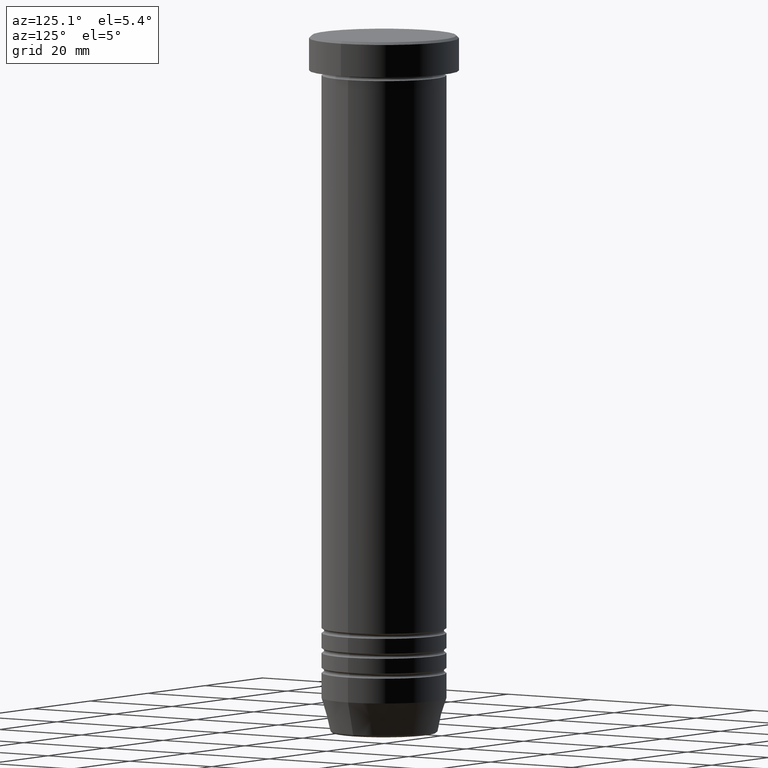
[diagram: clean part render]
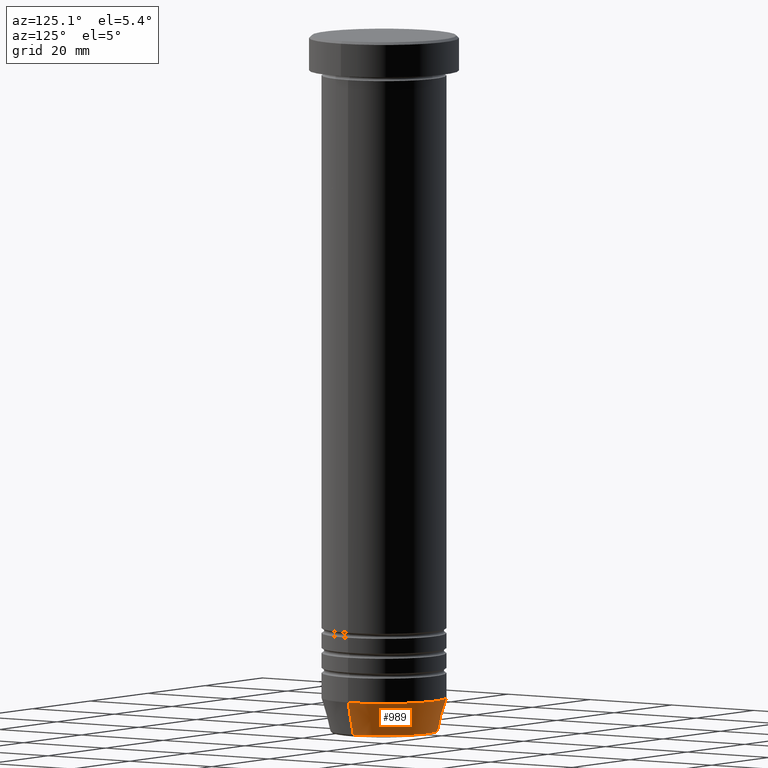
[diagram: same view with one face highlighted and labeled with its STEP entity id]
A machine part, auxiliary view. The second image highlights one B-rep face of the part: STEP entity #989.
In plain terms, the highlighted conical surface has half-angle 15 deg.
Its self-contained STEP definition (entity closure, byte-faithful):
#45 = EDGE_CURVE ( 'NONE', #454, #762, #944, .T. ) ;
#65 = AXIS2_PLACEMENT_3D ( 'NONE', #795, #223, #715 ) ;
#69 = CARTESIAN_POINT ( 'NONE',  ( -12.50000000000000000, 1.530808498934191521E-15, -132.9999999999999716 ) ) ;
#86 = CARTESIAN_POINT ( 'NONE',  ( 12.50000000000000000, 0.000000000000000000, -132.9999999999999716 ) ) ;
#98 = AXIS2_PLACEMENT_3D ( 'NONE', #822, #749, #570 ) ;
#111 = VERTEX_POINT ( 'NONE', #69 ) ;
#119 = CARTESIAN_POINT ( 'NONE',  ( -10.62435565298212481, 1.301108314342764740E-15, -140.0000000000000000 ) ) ;
#139 = EDGE_CURVE ( 'NONE', #454, #776, #380, .T. ) ;
#222 = EDGE_LOOP ( 'NONE', ( #370, #613, #466, #991 ) ) ;
#223 = DIRECTION ( 'NONE',  ( -0.000000000000000000, -0.000000000000000000, 1.000000000000000000 ) ) ;
#280 = CARTESIAN_POINT ( 'NONE',  ( -10.72365507213717706, 1.422038742429749332E-15, -139.6294095225512990 ) ) ;
#321 = CIRCLE ( 'NONE', #65, 12.50000000000000000 ) ;
#328 = FACE_OUTER_BOUND ( 'NONE', #222, .T. ) ;
#358 = EDGE_CURVE ( 'NONE', #776, #111, #690, .T. ) ;
#370 = ORIENTED_EDGE ( 'NONE', *, *, #139, .T. ) ;
#380 = CIRCLE ( 'NONE', #986, 10.72365507213717706 ) ;
#382 = CARTESIAN_POINT ( 'NONE',  ( 10.72365507213717706, 0.000000000000000000, -139.6294095225512990 ) ) ;
#401 = DIRECTION ( 'NONE',  ( -1.000000000000000000, 0.000000000000000000, 0.000000000000000000 ) ) ;
#450 = CONICAL_SURFACE ( 'NONE', #98, 10.62435565298212481, 0.2617993877991502960 ) ;
#454 = VERTEX_POINT ( 'NONE', #382 ) ;
#466 = ORIENTED_EDGE ( 'NONE', *, *, #825, .F. ) ;
#483 = CARTESIAN_POINT ( 'NONE',  ( 0.000000000000000000, 0.000000000000000000, -139.6294095225512990 ) ) ;
#527 = DIRECTION ( 'NONE',  ( -0.2588190451025216277, 3.169619151431776035E-17, 0.9659258262890679791 ) ) ;
#570 = DIRECTION ( 'NONE',  ( 1.000000000000000000, 0.000000000000000000, 0.000000000000000000 ) ) ;
#613 = ORIENTED_EDGE ( 'NONE', *, *, #358, .T. ) ;
#625 = CARTESIAN_POINT ( 'NONE',  ( 10.62435565298212481, 0.000000000000000000, -140.0000000000000000 ) ) ;
#690 = LINE ( 'NONE', #119, #914 ) ;
#715 = DIRECTION ( 'NONE',  ( 1.000000000000000000, 0.000000000000000000, 0.000000000000000000 ) ) ;
#749 = DIRECTION ( 'NONE',  ( -0.000000000000000000, -0.000000000000000000, 1.000000000000000000 ) ) ;
#762 = VERTEX_POINT ( 'NONE', #86 ) ;
#775 = VECTOR ( 'NONE', #885, 1000.000000000000114 ) ;
#776 = VERTEX_POINT ( 'NONE', #280 ) ;
#795 = CARTESIAN_POINT ( 'NONE',  ( 0.000000000000000000, 0.000000000000000000, -132.9999999999999716 ) ) ;
#815 = DIRECTION ( 'NONE',  ( -0.000000000000000000, -0.000000000000000000, 1.000000000000000000 ) ) ;
#822 = CARTESIAN_POINT ( 'NONE',  ( 0.000000000000000000, 0.000000000000000000, -140.0000000000000000 ) ) ;
#825 = EDGE_CURVE ( 'NONE', #762, #111, #321, .T. ) ;
#885 = DIRECTION ( 'NONE',  ( 0.2588190451025216277, 0.000000000000000000, 0.9659258262890679791 ) ) ;
#914 = VECTOR ( 'NONE', #527, 1000.000000000000114 ) ;
#944 = LINE ( 'NONE', #625, #775 ) ;
#986 = AXIS2_PLACEMENT_3D ( 'NONE', #483, #815, #401 ) ;
#989 = ADVANCED_FACE ( 'NONE', ( #328 ), #450, .T. ) ;
#991 = ORIENTED_EDGE ( 'NONE', *, *, #45, .F. ) ;